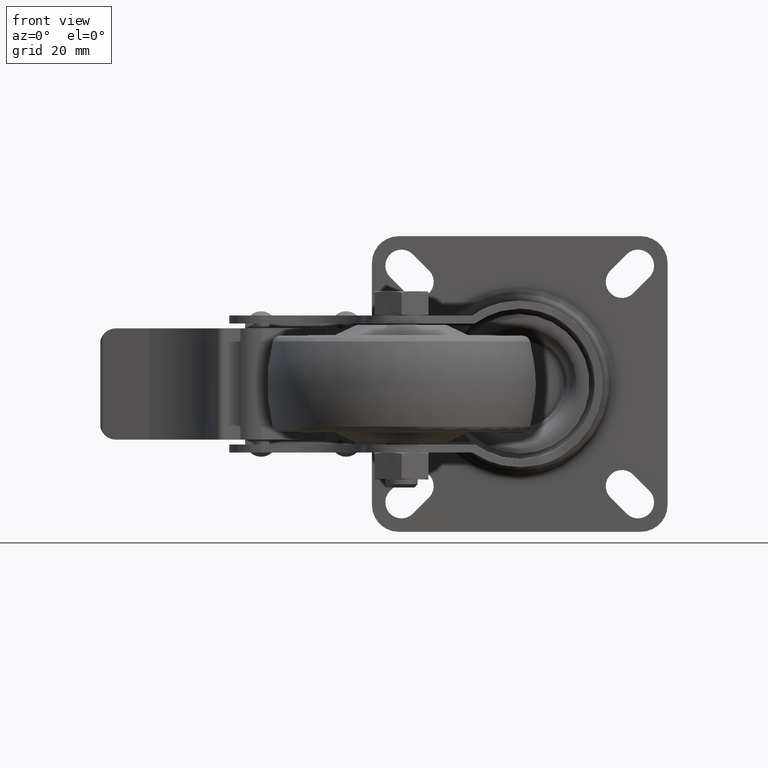
[diagram: clean part render]
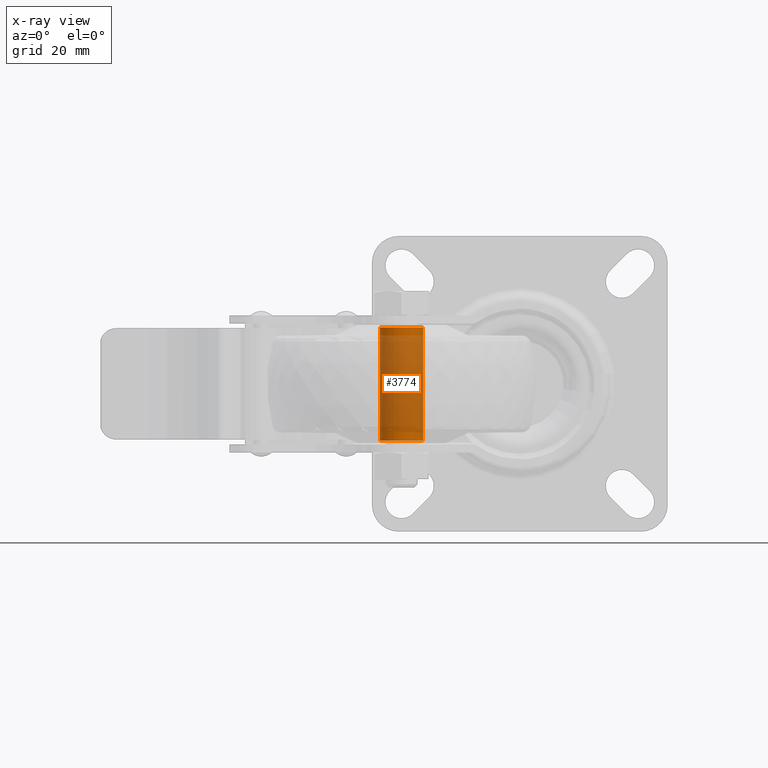
[diagram: x-ray — body ghosted, one internal face saturated and labeled with its STEP entity id]
A machine part, front view, then the same camera in x-ray: the body is ghosted and one INTERNAL B-rep face — a face not visible from any outside direction — is saturated and labeled: STEP entity #3774.
In plain terms, the highlighted cylindrical surface (bore or boss wall) has radius 4 mm, axis along (0, 0, -1).
Its self-contained STEP definition (entity closure, byte-faithful):
#517=FACE_OUTER_BOUND('',#779,.T.);
#779=EDGE_LOOP('',(#3289,#3290,#3291,#3292));
#1064=LINE('',#6913,#1276);
#1276=VECTOR('',#5489,4.);
#1487=CIRCLE('',#4426,4.);
#1488=CIRCLE('',#4428,4.);
#1833=VERTEX_POINT('',#6908);
#1834=VERTEX_POINT('',#6911);
#2326=EDGE_CURVE('',#1833,#1833,#1487,.T.);
#2327=EDGE_CURVE('',#1834,#1834,#1488,.T.);
#2328=EDGE_CURVE('',#1834,#1833,#1064,.T.);
#3289=ORIENTED_EDGE('',*,*,#2327,.T.);
#3290=ORIENTED_EDGE('',*,*,#2328,.T.);
#3291=ORIENTED_EDGE('',*,*,#2326,.F.);
#3292=ORIENTED_EDGE('',*,*,#2328,.F.);
#3597=CYLINDRICAL_SURFACE('',#4427,4.);
#3774=ADVANCED_FACE('',(#517),#3597,.F.);
#4426=AXIS2_PLACEMENT_3D('',#6909,#5483,#5484);
#4427=AXIS2_PLACEMENT_3D('',#6910,#5485,#5486);
#4428=AXIS2_PLACEMENT_3D('',#6912,#5487,#5488);
#5483=DIRECTION('center_axis',(1.,0.,0.));
#5484=DIRECTION('ref_axis',(0.,0.,-1.));
#5485=DIRECTION('center_axis',(-1.,0.,0.));
#5486=DIRECTION('ref_axis',(0.,0.,-1.));
#5487=DIRECTION('center_axis',(1.,0.,0.));
#5488=DIRECTION('ref_axis',(0.,0.,-1.));
#5489=DIRECTION('',(-1.,0.,0.));
#6908=CARTESIAN_POINT('',(0.,4.89858719658941E-16,4.));
#6909=CARTESIAN_POINT('Origin',(0.,0.,0.));
#6910=CARTESIAN_POINT('Origin',(21.,0.,0.));
#6911=CARTESIAN_POINT('',(21.,4.89858719658941E-16,4.));
#6912=CARTESIAN_POINT('Origin',(21.,0.,0.));
#6913=CARTESIAN_POINT('',(21.,4.89858719658941E-16,4.));